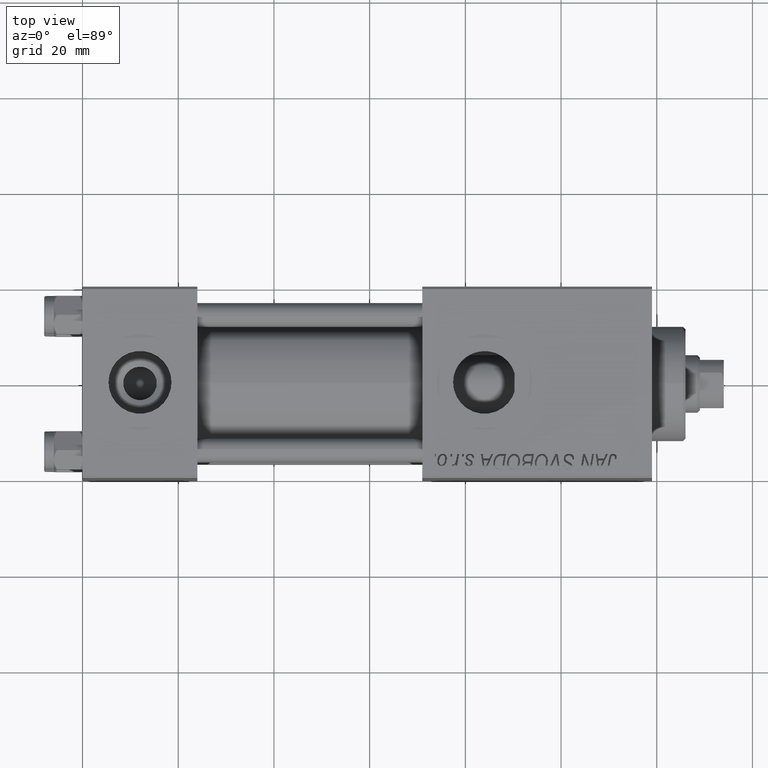
[diagram: clean part render]
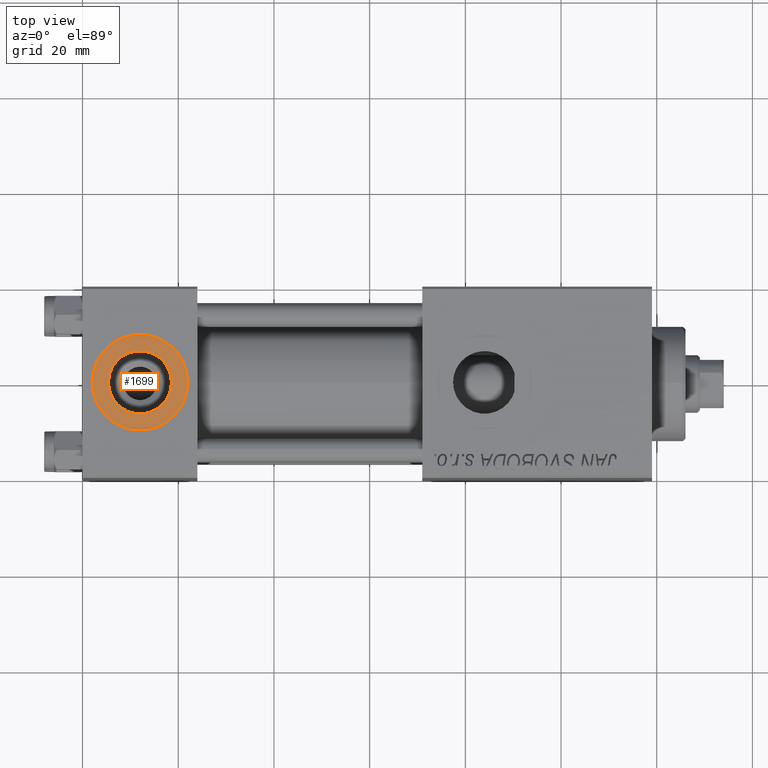
[diagram: same view with one face highlighted and labeled with its STEP entity id]
A machine part, top view. The second image highlights one B-rep face of the part: STEP entity #1699.
In plain terms, the highlighted planar face has unit normal (0, 0, 1).
Its self-contained STEP definition (entity closure, byte-faithful):
#772 = DIRECTION ( 'NONE',  ( 0.000000000000000000, 0.000000000000000000, 1.000000000000000000 ) ) ;
#1401 = CIRCLE ( 'NONE', #35535, 9.999999999999998224 ) ;
#1699 = ADVANCED_FACE ( 'NONE', ( #28728, #9391 ), #20329, .T. ) ;
#4039 = CIRCLE ( 'NONE', #4072, 6.579999999999999183 ) ;
#4072 = AXIS2_PLACEMENT_3D ( 'NONE', #35552, #31735, #16459 ) ;
#4571 = CARTESIAN_POINT ( 'NONE',  ( 12.00000000000000000, 1.540743955509788682E-30, 19.79999999999999716 ) ) ;
#5565 = DIRECTION ( 'NONE',  ( 1.000000000000000000, 0.000000000000000000, -0.000000000000000000 ) ) ;
#7272 = DIRECTION ( 'NONE',  ( 0.000000000000000000, 0.000000000000000000, 1.000000000000000000 ) ) ;
#8542 = EDGE_LOOP ( 'NONE', ( #24871, #26383 ) ) ;
#9053 = EDGE_LOOP ( 'NONE', ( #45260, #13613 ) ) ;
#9391 = FACE_OUTER_BOUND ( 'NONE', #8542, .T. ) ;
#9898 = EDGE_CURVE ( 'NONE', #17713, #26569, #4039, .T. ) ;
#10130 = EDGE_CURVE ( 'NONE', #46697, #17146, #12189, .T. ) ;
#10604 = CARTESIAN_POINT ( 'NONE',  ( 18.57999999999999829, 1.540743955509788682E-30, 19.79999999999999716 ) ) ;
#12189 = CIRCLE ( 'NONE', #40608, 9.999999999999998224 ) ;
#13413 = EDGE_CURVE ( 'NONE', #26569, #17713, #20809, .T. ) ;
#13613 = ORIENTED_EDGE ( 'NONE', *, *, #13413, .F. ) ;
#14228 = DIRECTION ( 'NONE',  ( 0.000000000000000000, 0.000000000000000000, 1.000000000000000000 ) ) ;
#14722 = CARTESIAN_POINT ( 'NONE',  ( 12.00000000000000000, 1.540743955509788682E-30, 19.79999999999999716 ) ) ;
#16459 = DIRECTION ( 'NONE',  ( 1.000000000000000000, 0.000000000000000000, 0.000000000000000000 ) ) ;
#17146 = VERTEX_POINT ( 'NONE', #47132 ) ;
#17713 = VERTEX_POINT ( 'NONE', #10604 ) ;
#19472 = EDGE_CURVE ( 'NONE', #17146, #46697, #1401, .T. ) ;
#20329 = PLANE ( 'NONE',  #30695 ) ;
#20809 = CIRCLE ( 'NONE', #39517, 6.579999999999999183 ) ;
#24871 = ORIENTED_EDGE ( 'NONE', *, *, #19472, .T. ) ;
#26383 = ORIENTED_EDGE ( 'NONE', *, *, #10130, .T. ) ;
#26569 = VERTEX_POINT ( 'NONE', #42535 ) ;
#28728 = FACE_BOUND ( 'NONE', #9053, .T. ) ;
#30695 = AXIS2_PLACEMENT_3D ( 'NONE', #4571, #772, #5565 ) ;
#31439 = CARTESIAN_POINT ( 'NONE',  ( 12.00000000000000000, 1.540743955509788682E-30, 19.79999999999999716 ) ) ;
#31735 = DIRECTION ( 'NONE',  ( 0.000000000000000000, 0.000000000000000000, 1.000000000000000000 ) ) ;
#32706 = DIRECTION ( 'NONE',  ( 1.000000000000000000, 0.000000000000000000, 0.000000000000000000 ) ) ;
#34059 = DIRECTION ( 'NONE',  ( 1.000000000000000000, 0.000000000000000000, 0.000000000000000000 ) ) ;
#34104 = CARTESIAN_POINT ( 'NONE',  ( 2.000000000000003553, 1.224646799147354440E-15, 19.79999999999999716 ) ) ;
#34251 = CARTESIAN_POINT ( 'NONE',  ( 12.00000000000000000, 1.540743955509788682E-30, 19.79999999999999716 ) ) ;
#35535 = AXIS2_PLACEMENT_3D ( 'NONE', #31439, #46949, #32706 ) ;
#35552 = CARTESIAN_POINT ( 'NONE',  ( 12.00000000000000000, 1.540743955509788682E-30, 19.79999999999999716 ) ) ;
#39517 = AXIS2_PLACEMENT_3D ( 'NONE', #34251, #7272, #49755 ) ;
#40608 = AXIS2_PLACEMENT_3D ( 'NONE', #14722, #14228, #34059 ) ;
#42535 = CARTESIAN_POINT ( 'NONE',  ( 5.420000000000000817, 8.058175938389596335E-16, 19.79999999999999716 ) ) ;
#45260 = ORIENTED_EDGE ( 'NONE', *, *, #9898, .F. ) ;
#46697 = VERTEX_POINT ( 'NONE', #34104 ) ;
#46949 = DIRECTION ( 'NONE',  ( 0.000000000000000000, 0.000000000000000000, 1.000000000000000000 ) ) ;
#47132 = CARTESIAN_POINT ( 'NONE',  ( 22.00000000000000000, 1.540743955509788682E-30, 19.79999999999999716 ) ) ;
#49755 = DIRECTION ( 'NONE',  ( 1.000000000000000000, 0.000000000000000000, 0.000000000000000000 ) ) ;